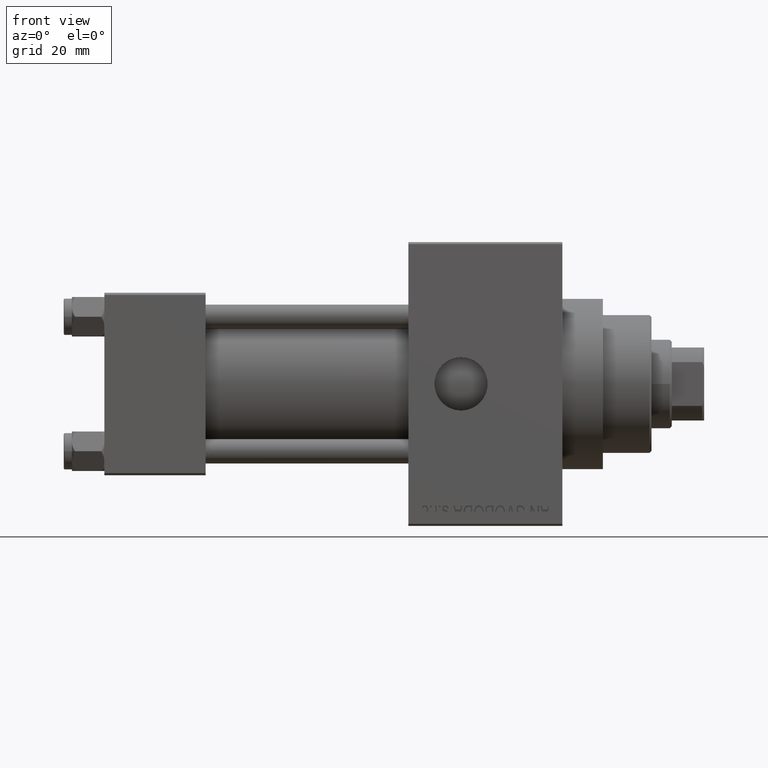
[diagram: clean part render]
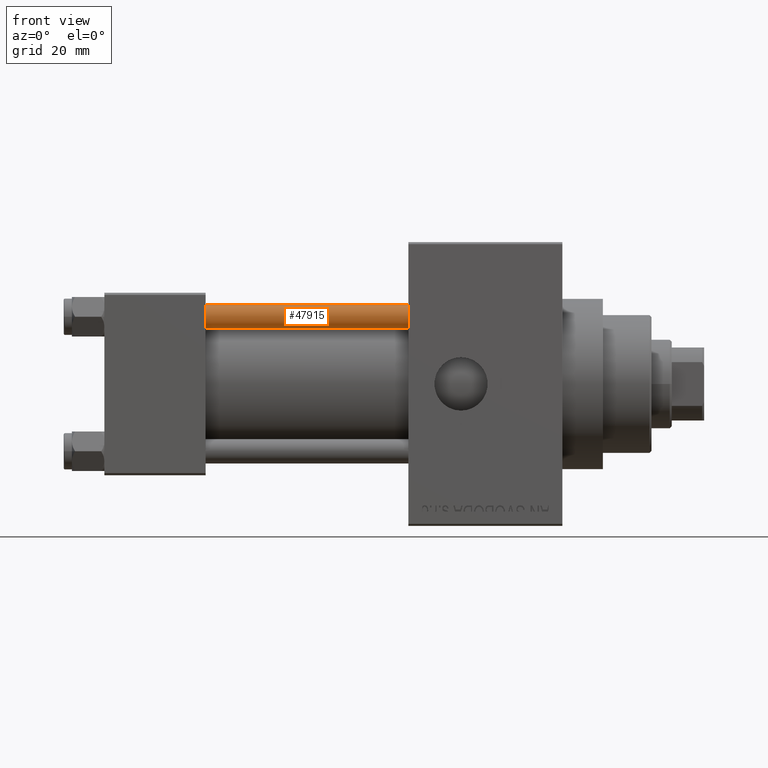
[diagram: same view with one face highlighted and labeled with its STEP entity id]
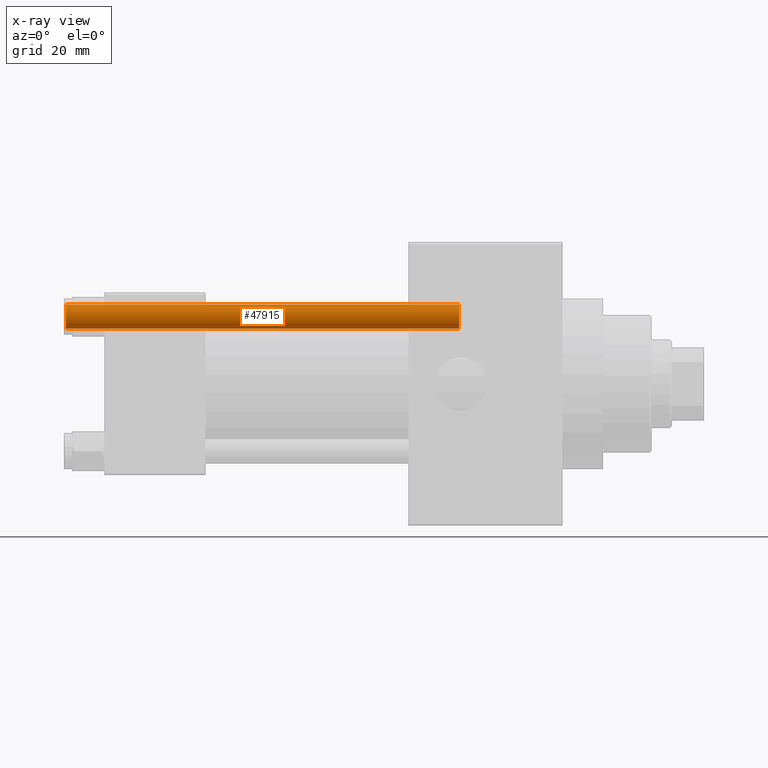
[diagram: x-ray of the same camera — body ghosted, the highlighted face saturated]
A machine part, front view. The second image highlights one B-rep face of the part: STEP entity #47915.
The next image is the same camera in x-ray: the body ghosted, the highlighted face saturated — about 0% of this face is hidden behind the body in this view.
In plain terms, the highlighted cylindrical surface (edge-blend (fillet) strip) has radius 3 mm, axis along (1, 0, 0).
Its self-contained STEP definition (entity closure, byte-faithful):
#139 = CARTESIAN_POINT ( 'NONE',  ( 0.000000000000000000, 0.000000000000000000, 97.50000000000001421 ) ) ;
#620 = DIRECTION ( 'NONE',  ( 0.000000000000000000, 0.000000000000000000, -1.000000000000000000 ) ) ;
#1032 = DIRECTION ( 'NONE',  ( 1.000000000000000000, 0.000000000000000000, 0.000000000000000000 ) ) ;
#3072 = LINE ( 'NONE', #25668, #28278 ) ;
#3268 = CIRCLE ( 'NONE', #31035, 3.000000000000000444 ) ;
#3437 = AXIS2_PLACEMENT_3D ( 'NONE', #48791, #29911, #45069 ) ;
#6656 = VERTEX_POINT ( 'NONE', #12360 ) ;
#7755 = CARTESIAN_POINT ( 'NONE',  ( 3.000000000000000444, 3.673940397442060361E-16, 0.5000000000000281997 ) ) ;
#7913 = EDGE_CURVE ( 'NONE', #25225, #29424, #3268, .T. ) ;
#12308 = DIRECTION ( 'NONE',  ( 1.000000000000000000, 0.000000000000000000, 0.000000000000000000 ) ) ;
#12360 = CARTESIAN_POINT ( 'NONE',  ( -3.000000000000000444, 0.000000000000000000, 0.5000000000000281997 ) ) ;
#14292 = FACE_OUTER_BOUND ( 'NONE', #20004, .T. ) ;
#16180 = VERTEX_POINT ( 'NONE', #7755 ) ;
#16461 = AXIS2_PLACEMENT_3D ( 'NONE', #46978, #44190, #1032 ) ;
#18443 = DIRECTION ( 'NONE',  ( -0.000000000000000000, -0.000000000000000000, -1.000000000000000000 ) ) ;
#19353 = DIRECTION ( 'NONE',  ( -0.000000000000000000, -0.000000000000000000, -1.000000000000000000 ) ) ;
#19592 = LINE ( 'NONE', #25892, #37220 ) ;
#20004 = EDGE_LOOP ( 'NONE', ( #28927, #44370, #25026, #27645 ) ) ;
#24858 = CARTESIAN_POINT ( 'NONE',  ( -3.000000000000000444, 0.000000000000000000, 97.50000000000001421 ) ) ;
#25026 = ORIENTED_EDGE ( 'NONE', *, *, #27981, .T. ) ;
#25111 = EDGE_CURVE ( 'NONE', #25225, #6656, #3072, .T. ) ;
#25225 = VERTEX_POINT ( 'NONE', #24858 ) ;
#25668 = CARTESIAN_POINT ( 'NONE',  ( -3.000000000000000444, 0.000000000000000000, 98.00000000000000000 ) ) ;
#25892 = CARTESIAN_POINT ( 'NONE',  ( 3.000000000000000444, 3.673940397442060361E-16, 98.00000000000000000 ) ) ;
#27645 = ORIENTED_EDGE ( 'NONE', *, *, #25111, .F. ) ;
#27981 = EDGE_CURVE ( 'NONE', #16180, #6656, #38705, .T. ) ;
#28278 = VECTOR ( 'NONE', #18443, 1000.000000000000000 ) ;
#28927 = ORIENTED_EDGE ( 'NONE', *, *, #7913, .T. ) ;
#29422 = CYLINDRICAL_SURFACE ( 'NONE', #3437, 3.000000000000000444 ) ;
#29424 = VERTEX_POINT ( 'NONE', #30376 ) ;
#29911 = DIRECTION ( 'NONE',  ( -0.000000000000000000, -0.000000000000000000, -1.000000000000000000 ) ) ;
#30376 = CARTESIAN_POINT ( 'NONE',  ( 3.000000000000000444, 3.673940397442060361E-16, 97.50000000000001421 ) ) ;
#31035 = AXIS2_PLACEMENT_3D ( 'NONE', #139, #620, #12308 ) ;
#34416 = EDGE_CURVE ( 'NONE', #29424, #16180, #19592, .T. ) ;
#37220 = VECTOR ( 'NONE', #19353, 1000.000000000000000 ) ;
#38705 = CIRCLE ( 'NONE', #16461, 3.000000000000000444 ) ;
#44190 = DIRECTION ( 'NONE',  ( -0.000000000000000000, -0.000000000000000000, 1.000000000000000000 ) ) ;
#44370 = ORIENTED_EDGE ( 'NONE', *, *, #34416, .T. ) ;
#45069 = DIRECTION ( 'NONE',  ( -1.000000000000000000, 0.000000000000000000, 0.000000000000000000 ) ) ;
#46978 = CARTESIAN_POINT ( 'NONE',  ( 0.000000000000000000, 0.000000000000000000, 0.5000000000000281997 ) ) ;
#47915 = ADVANCED_FACE ( 'NONE', ( #14292 ), #29422, .T. ) ;
#48791 = CARTESIAN_POINT ( 'NONE',  ( 0.000000000000000000, 0.000000000000000000, 98.00000000000000000 ) ) ;